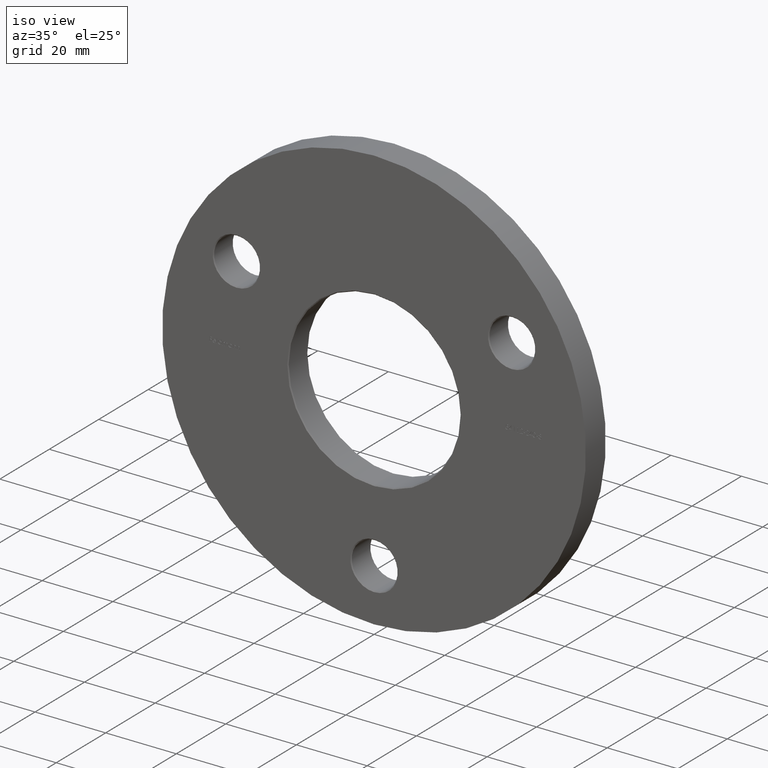
[diagram: clean part render]
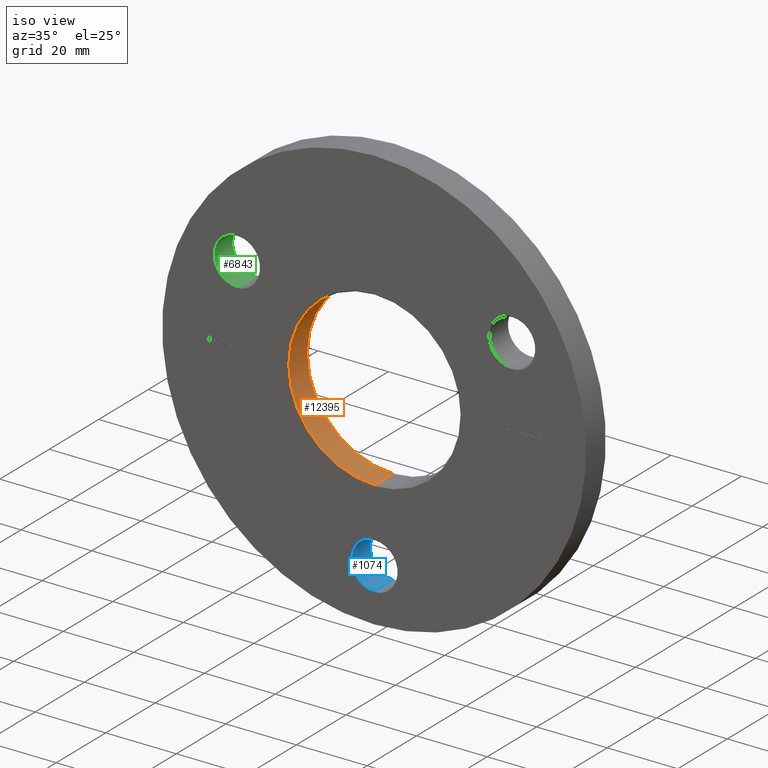
[diagram: same view with three faces highlighted in distinct colors, each labeled with its STEP entity id]
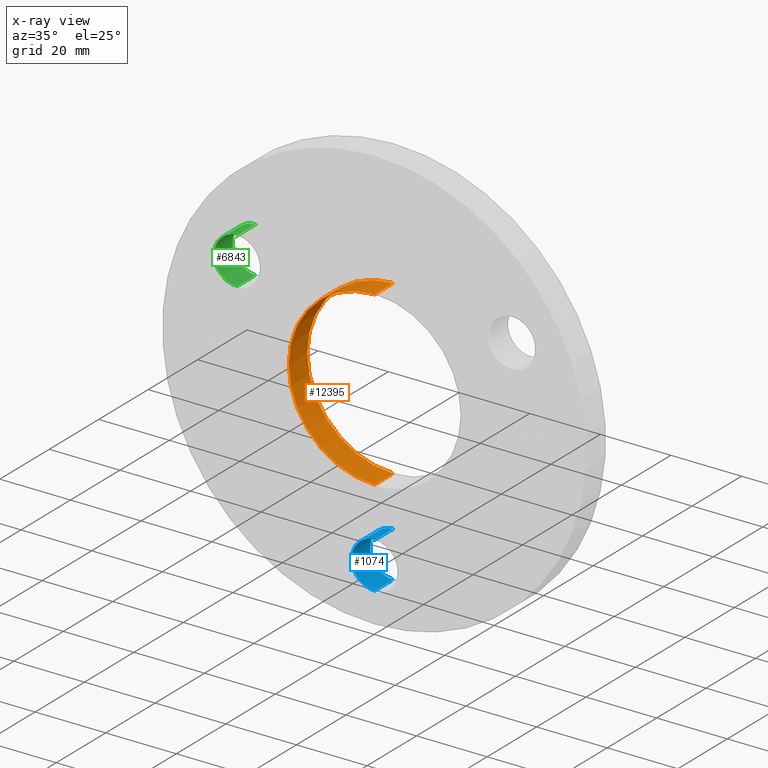
[diagram: x-ray of the same camera — body ghosted, the three highlighted faces saturated]
A machine part, iso view with three faces highlighted in distinct colors.
The next image is the same camera in x-ray (body ghosted, the three faces saturated) — at least one of them is partly hidden behind the body in this view.
Their STEP definitions:

[orange] entity #12395 — the highlighted cylindrical surface (partial cylindrical patch) has radius 24.35 mm, axis along (-0, 1, -0).
#128 = CARTESIAN_POINT ( 'NONE',  ( 0.000000000000000000, 0.000000000000000000, 24.35000000000000497 ) ) ;
#1007 = EDGE_CURVE ( 'NONE', #12843, #1824, #7049, .T. ) ;
#1306 = AXIS2_PLACEMENT_3D ( 'NONE', #1876, #9062, #9108 ) ;
#1824 = VERTEX_POINT ( 'NONE', #3695 ) ;
#1839 = ORIENTED_EDGE ( 'NONE', *, *, #2022, .T. ) ;
#1876 = CARTESIAN_POINT ( 'NONE',  ( 0.000000000000000000, 0.2500000000000071609, 0.000000000000000000 ) ) ;
#2022 = EDGE_CURVE ( 'NONE', #7965, #1824, #7518, .T. ) ;
#2217 = DIRECTION ( 'NONE',  ( 0.000000000000000000, 1.000000000000000000, 0.000000000000000000 ) ) ;
#2304 = EDGE_CURVE ( 'NONE', #5926, #7965, #9906, .T. ) ;
#2476 = ORIENTED_EDGE ( 'NONE', *, *, #2304, .T. ) ;
#3511 = CYLINDRICAL_SURFACE ( 'NONE', #6091, 24.35000000000000497 ) ;
#3695 = CARTESIAN_POINT ( 'NONE',  ( 0.000000000000000000, 7.749999999999992895, 24.35000000000000497 ) ) ;
#4075 = CARTESIAN_POINT ( 'NONE',  ( 2.982014955923805433E-15, 7.749999999999992895, -24.35000000000000497 ) ) ;
#4274 = CARTESIAN_POINT ( 'NONE',  ( 0.000000000000000000, 7.749999999999992895, 0.000000000000000000 ) ) ;
#4477 = VECTOR ( 'NONE', #12169, 1000.000000000000000 ) ;
#5317 = CARTESIAN_POINT ( 'NONE',  ( 0.000000000000000000, 0.2500000000000071609, 24.35000000000000497 ) ) ;
#5850 = CARTESIAN_POINT ( 'NONE',  ( 2.982014955923805433E-15, 0.2500000000000071609, -24.35000000000000497 ) ) ;
#5859 = ORIENTED_EDGE ( 'NONE', *, *, #1007, .F. ) ;
#5926 = VERTEX_POINT ( 'NONE', #5850 ) ;
#6091 = AXIS2_PLACEMENT_3D ( 'NONE', #6764, #8869, #7808 ) ;
#6579 = FACE_OUTER_BOUND ( 'NONE', #10445, .T. ) ;
#6764 = CARTESIAN_POINT ( 'NONE',  ( 0.000000000000000000, 0.000000000000000000, 0.000000000000000000 ) ) ;
#7049 = LINE ( 'NONE', #128, #4477 ) ;
#7473 = EDGE_CURVE ( 'NONE', #12843, #5926, #12108, .T. ) ;
#7518 = CIRCLE ( 'NONE', #10373, 24.35000000000000497 ) ;
#7808 = DIRECTION ( 'NONE',  ( 0.000000000000000000, 0.000000000000000000, 1.000000000000000000 ) ) ;
#7965 = VERTEX_POINT ( 'NONE', #4075 ) ;
#8313 = VECTOR ( 'NONE', #12131, 1000.000000000000000 ) ;
#8417 = DIRECTION ( 'NONE',  ( 0.000000000000000000, 0.000000000000000000, 1.000000000000000000 ) ) ;
#8869 = DIRECTION ( 'NONE',  ( -0.000000000000000000, 1.000000000000000000, -0.000000000000000000 ) ) ;
#9062 = DIRECTION ( 'NONE',  ( -0.000000000000000000, -1.000000000000000000, -0.000000000000000000 ) ) ;
#9108 = DIRECTION ( 'NONE',  ( 0.000000000000000000, 0.000000000000000000, 1.000000000000000000 ) ) ;
#9906 = LINE ( 'NONE', #11077, #8313 ) ;
#10264 = ORIENTED_EDGE ( 'NONE', *, *, #7473, .T. ) ;
#10373 = AXIS2_PLACEMENT_3D ( 'NONE', #4274, #2217, #8417 ) ;
#10445 = EDGE_LOOP ( 'NONE', ( #10264, #2476, #1839, #5859 ) ) ;
#11077 = CARTESIAN_POINT ( 'NONE',  ( 2.982014955923805433E-15, 0.000000000000000000, -24.35000000000000497 ) ) ;
#12108 = CIRCLE ( 'NONE', #1306, 24.35000000000000497 ) ;
#12131 = DIRECTION ( 'NONE',  ( -0.000000000000000000, 1.000000000000000000, -0.000000000000000000 ) ) ;
#12169 = DIRECTION ( 'NONE',  ( -0.000000000000000000, 1.000000000000000000, -0.000000000000000000 ) ) ;
#12395 = ADVANCED_FACE ( 'NONE', ( #6579 ), #3511, .F. ) ;
#12843 = VERTEX_POINT ( 'NONE', #5317 ) ;

[blue] entity #1074 — the highlighted cylindrical surface (edge-blend (fillet) strip) has radius 6.5 mm, axis along (-0, -1, -0).
#95 = VECTOR ( 'NONE', #9186, 1000.000000000000000 ) ;
#883 = CIRCLE ( 'NONE', #9251, 6.499999999999999112 ) ;
#1074 = ADVANCED_FACE ( 'NONE', ( #4808 ), #4314, .F. ) ;
#1201 = ORIENTED_EDGE ( 'NONE', *, *, #1326, .T. ) ;
#1326 = EDGE_CURVE ( 'NONE', #8946, #12394, #883, .T. ) ;
#1631 = EDGE_CURVE ( 'NONE', #8946, #12721, #8953, .T. ) ;
#1900 = AXIS2_PLACEMENT_3D ( 'NONE', #12598, #3275, #10435 ) ;
#2454 = ORIENTED_EDGE ( 'NONE', *, *, #5723, .T. ) ;
#2799 = VERTEX_POINT ( 'NONE', #8725 ) ;
#2873 = DIRECTION ( 'NONE',  ( 0.000000000000000000, 0.000000000000000000, -1.000000000000000000 ) ) ;
#3210 = AXIS2_PLACEMENT_3D ( 'NONE', #5924, #6013, #2873 ) ;
#3275 = DIRECTION ( 'NONE',  ( -0.000000000000000000, -1.000000000000000000, -0.000000000000000000 ) ) ;
#3293 = ORIENTED_EDGE ( 'NONE', *, *, #9518, .T. ) ;
#3562 = LINE ( 'NONE', #8122, #10952 ) ;
#4055 = EDGE_LOOP ( 'NONE', ( #1201, #3293, #2454, #12217 ) ) ;
#4314 = CYLINDRICAL_SURFACE ( 'NONE', #3210, 6.499999999999999112 ) ;
#4475 = DIRECTION ( 'NONE',  ( 0.000000000000000000, 1.000000000000000000, 0.000000000000000000 ) ) ;
#4567 = CARTESIAN_POINT ( 'NONE',  ( 0.000000000000000000, 7.749999999999968026, -45.00000000000000000 ) ) ;
#4808 = FACE_OUTER_BOUND ( 'NONE', #4055, .T. ) ;
#5723 = EDGE_CURVE ( 'NONE', #2799, #12721, #6953, .T. ) ;
#5924 = CARTESIAN_POINT ( 'NONE',  ( 0.000000000000000000, 8.000000000000000000, -45.00000000000000000 ) ) ;
#6013 = DIRECTION ( 'NONE',  ( -0.000000000000000000, -1.000000000000000000, -0.000000000000000000 ) ) ;
#6101 = DIRECTION ( 'NONE',  ( -0.000000000000000000, -1.000000000000000000, -0.000000000000000000 ) ) ;
#6230 = CARTESIAN_POINT ( 'NONE',  ( 0.000000000000000000, 7.749999999999968026, -51.50000000000000000 ) ) ;
#6953 = CIRCLE ( 'NONE', #1900, 6.499999999999999112 ) ;
#8122 = CARTESIAN_POINT ( 'NONE',  ( 7.960204194457795477E-16, 8.000000000000000000, -38.50000000000000000 ) ) ;
#8725 = CARTESIAN_POINT ( 'NONE',  ( 7.960204194457797449E-16, 0.2500000000000409672, -38.50000000000000000 ) ) ;
#8946 = VERTEX_POINT ( 'NONE', #6230 ) ;
#8953 = LINE ( 'NONE', #11142, #95 ) ;
#9186 = DIRECTION ( 'NONE',  ( -0.000000000000000000, -1.000000000000000000, -0.000000000000000000 ) ) ;
#9251 = AXIS2_PLACEMENT_3D ( 'NONE', #4567, #4475, #12759 ) ;
#9518 = EDGE_CURVE ( 'NONE', #12394, #2799, #3562, .T. ) ;
#9863 = CARTESIAN_POINT ( 'NONE',  ( 7.960204194457797449E-16, 7.749999999999968026, -38.50000000000000000 ) ) ;
#10435 = DIRECTION ( 'NONE',  ( 0.000000000000000000, 0.000000000000000000, 1.000000000000000000 ) ) ;
#10952 = VECTOR ( 'NONE', #6101, 1000.000000000000000 ) ;
#11142 = CARTESIAN_POINT ( 'NONE',  ( 0.000000000000000000, 8.000000000000000000, -51.50000000000000000 ) ) ;
#12217 = ORIENTED_EDGE ( 'NONE', *, *, #1631, .F. ) ;
#12394 = VERTEX_POINT ( 'NONE', #9863 ) ;
#12416 = CARTESIAN_POINT ( 'NONE',  ( 0.000000000000000000, 0.2500000000000409672, -51.50000000000000000 ) ) ;
#12598 = CARTESIAN_POINT ( 'NONE',  ( 0.000000000000000000, 0.2500000000000409672, -45.00000000000000000 ) ) ;
#12721 = VERTEX_POINT ( 'NONE', #12416 ) ;
#12759 = DIRECTION ( 'NONE',  ( 0.000000000000000000, 0.000000000000000000, 1.000000000000000000 ) ) ;

[green] entity #6843 — the highlighted cylindrical surface (edge-blend (fillet) strip) has radius 6.5 mm, axis along (-0, -1, -0).
#926 = CARTESIAN_POINT ( 'NONE',  ( -38.97114317029973307, 8.000000000000000000, 16.00000000000001066 ) ) ;
#977 = DIRECTION ( 'NONE',  ( 0.000000000000000000, 0.000000000000000000, -1.000000000000000000 ) ) ;
#1320 = VERTEX_POINT ( 'NONE', #1503 ) ;
#1503 = CARTESIAN_POINT ( 'NONE',  ( -38.97114317029973307, 7.749999999999963585, 29.00000000000002842 ) ) ;
#1589 = DIRECTION ( 'NONE',  ( 0.000000000000000000, 0.000000000000000000, 1.000000000000000000 ) ) ;
#1949 = DIRECTION ( 'NONE',  ( 0.000000000000000000, 0.000000000000000000, 1.000000000000000000 ) ) ;
#2062 = DIRECTION ( 'NONE',  ( -0.000000000000000000, -1.000000000000000000, -0.000000000000000000 ) ) ;
#2184 = CARTESIAN_POINT ( 'NONE',  ( -38.97114317029973307, 0.2499999999999924227, 16.00000000000001066 ) ) ;
#3171 = EDGE_LOOP ( 'NONE', ( #5198, #10095, #5443, #6033 ) ) ;
#3587 = VECTOR ( 'NONE', #7932, 1000.000000000000000 ) ;
#3806 = VERTEX_POINT ( 'NONE', #2184 ) ;
#4126 = DIRECTION ( 'NONE',  ( -0.000000000000000000, -1.000000000000000000, -0.000000000000000000 ) ) ;
#4294 = AXIS2_PLACEMENT_3D ( 'NONE', #10701, #7798, #1589 ) ;
#4398 = LINE ( 'NONE', #8984, #3587 ) ;
#4528 = EDGE_CURVE ( 'NONE', #1320, #5820, #4398, .T. ) ;
#4626 = AXIS2_PLACEMENT_3D ( 'NONE', #9273, #6218, #1949 ) ;
#5052 = CYLINDRICAL_SURFACE ( 'NONE', #7572, 6.500000000000008882 ) ;
#5198 = ORIENTED_EDGE ( 'NONE', *, *, #8255, .T. ) ;
#5443 = ORIENTED_EDGE ( 'NONE', *, *, #5603, .T. ) ;
#5603 = EDGE_CURVE ( 'NONE', #5820, #3806, #9034, .T. ) ;
#5820 = VERTEX_POINT ( 'NONE', #7350 ) ;
#6033 = ORIENTED_EDGE ( 'NONE', *, *, #10954, .F. ) ;
#6218 = DIRECTION ( 'NONE',  ( -0.000000000000000000, -1.000000000000000000, -0.000000000000000000 ) ) ;
#6288 = LINE ( 'NONE', #926, #11891 ) ;
#6843 = ADVANCED_FACE ( 'NONE', ( #8104 ), #5052, .F. ) ;
#7131 = CIRCLE ( 'NONE', #4294, 6.500000000000008882 ) ;
#7350 = CARTESIAN_POINT ( 'NONE',  ( -38.97114317029973307, 0.2499999999999924227, 29.00000000000002842 ) ) ;
#7572 = AXIS2_PLACEMENT_3D ( 'NONE', #8272, #2062, #977 ) ;
#7798 = DIRECTION ( 'NONE',  ( 0.000000000000000000, 1.000000000000000000, 0.000000000000000000 ) ) ;
#7932 = DIRECTION ( 'NONE',  ( -0.000000000000000000, -1.000000000000000000, -0.000000000000000000 ) ) ;
#8104 = FACE_OUTER_BOUND ( 'NONE', #3171, .T. ) ;
#8255 = EDGE_CURVE ( 'NONE', #8264, #1320, #7131, .T. ) ;
#8264 = VERTEX_POINT ( 'NONE', #9812 ) ;
#8272 = CARTESIAN_POINT ( 'NONE',  ( -38.97114317029973307, 8.000000000000000000, 22.50000000000002132 ) ) ;
#8984 = CARTESIAN_POINT ( 'NONE',  ( -38.97114317029973307, 8.000000000000000000, 29.00000000000002842 ) ) ;
#9034 = CIRCLE ( 'NONE', #4626, 6.500000000000008882 ) ;
#9273 = CARTESIAN_POINT ( 'NONE',  ( -38.97114317029973307, 0.2499999999999924227, 22.50000000000002132 ) ) ;
#9812 = CARTESIAN_POINT ( 'NONE',  ( -38.97114317029973307, 7.749999999999963585, 16.00000000000001066 ) ) ;
#10095 = ORIENTED_EDGE ( 'NONE', *, *, #4528, .T. ) ;
#10701 = CARTESIAN_POINT ( 'NONE',  ( -38.97114317029973307, 7.749999999999963585, 22.50000000000002132 ) ) ;
#10954 = EDGE_CURVE ( 'NONE', #8264, #3806, #6288, .T. ) ;
#11891 = VECTOR ( 'NONE', #4126, 1000.000000000000000 ) ;